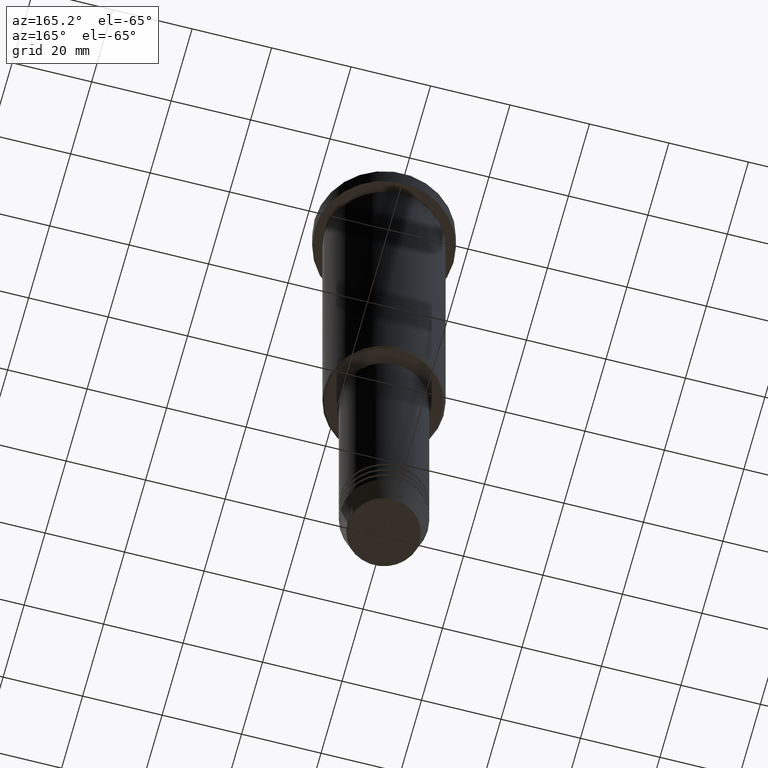
[diagram: clean part render]
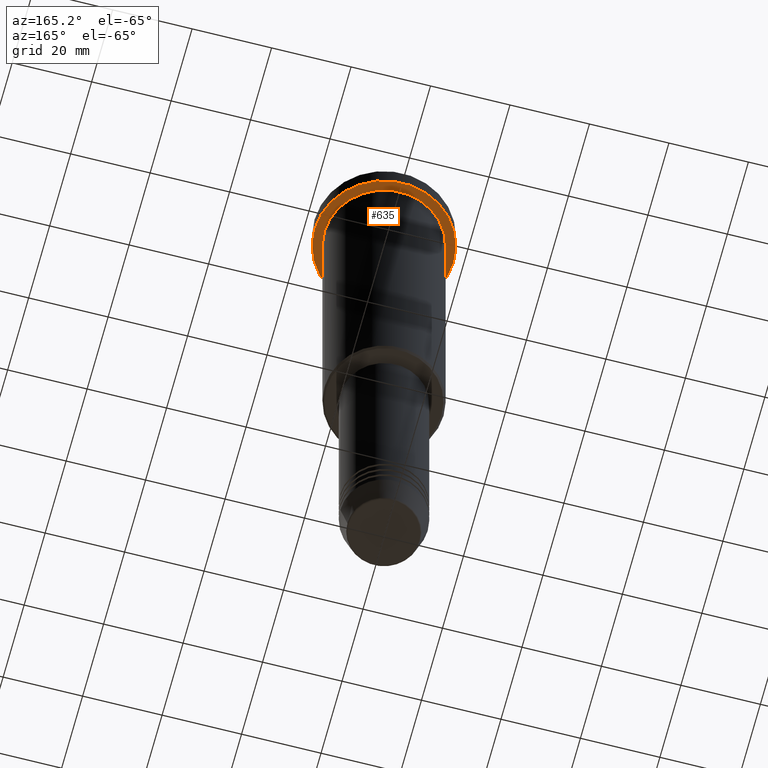
[diagram: same view with one face highlighted and labeled with its STEP entity id]
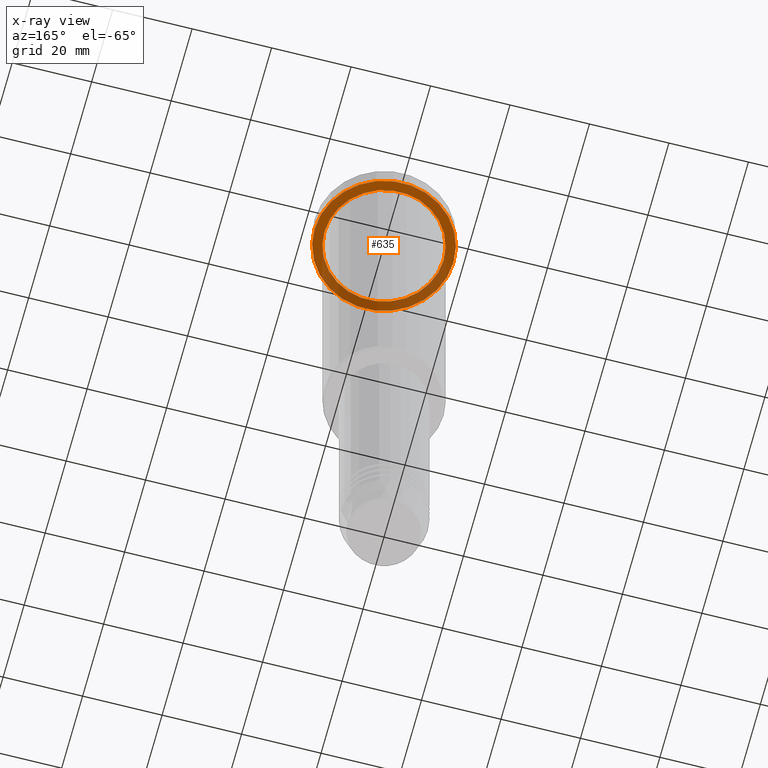
[diagram: x-ray of the same camera — body ghosted, the highlighted face saturated]
A machine part, auxiliary view. The second image highlights one B-rep face of the part: STEP entity #635.
The next image is the same camera in x-ray: the body ghosted, the highlighted face saturated — about 37% of this face is hidden behind the body in this view.
In plain terms, the highlighted planar face has unit normal (0, 0, -1).
Its self-contained STEP definition (entity closure, byte-faithful):
#2 = DIRECTION ( 'NONE',  ( 0.000000000000000000, 0.000000000000000000, -1.000000000000000000 ) ) ;
#25 = AXIS2_PLACEMENT_3D ( 'NONE', #492, #782, #768 ) ;
#121 = CIRCLE ( 'NONE', #501, 15.00000000000000000 ) ;
#140 = CIRCLE ( 'NONE', #25, 17.50000000000000000 ) ;
#142 = CARTESIAN_POINT ( 'NONE',  ( 0.000000000000000000, 0.000000000000000000, -5.999999999999995559 ) ) ;
#167 = EDGE_CURVE ( 'NONE', #1028, #696, #979, .T. ) ;
#181 = AXIS2_PLACEMENT_3D ( 'NONE', #1020, #466, #554 ) ;
#209 = ORIENTED_EDGE ( 'NONE', *, *, #167, .T. ) ;
#260 = CARTESIAN_POINT ( 'NONE',  ( 0.000000000000000000, 17.50000000000000000, -5.999999999999995559 ) ) ;
#268 = CARTESIAN_POINT ( 'NONE',  ( -17.50000000000000000, 2.143131898507868248E-15, -5.999999999999995559 ) ) ;
#308 = VERTEX_POINT ( 'NONE', #779 ) ;
#399 = CIRCLE ( 'NONE', #181, 17.50000000000000000 ) ;
#466 = DIRECTION ( 'NONE',  ( -0.000000000000000000, -0.000000000000000000, 1.000000000000000000 ) ) ;
#469 = DIRECTION ( 'NONE',  ( -0.000000000000000000, -0.000000000000000000, 1.000000000000000000 ) ) ;
#492 = CARTESIAN_POINT ( 'NONE',  ( 0.000000000000000000, 0.000000000000000000, -5.999999999999995559 ) ) ;
#501 = AXIS2_PLACEMENT_3D ( 'NONE', #560, #469, #907 ) ;
#525 = DIRECTION ( 'NONE',  ( -0.000000000000000000, -0.000000000000000000, 1.000000000000000000 ) ) ;
#554 = DIRECTION ( 'NONE',  ( 1.000000000000000000, 0.000000000000000000, 0.000000000000000000 ) ) ;
#560 = CARTESIAN_POINT ( 'NONE',  ( 0.000000000000000000, 0.000000000000000000, -5.999999999999995559 ) ) ;
#583 = EDGE_LOOP ( 'NONE', ( #861, #209 ) ) ;
#611 = EDGE_CURVE ( 'NONE', #696, #1028, #121, .T. ) ;
#635 = ADVANCED_FACE ( 'NONE', ( #902, #1006 ), #1080, .T. ) ;
#643 = VERTEX_POINT ( 'NONE', #268 ) ;
#696 = VERTEX_POINT ( 'NONE', #1130 ) ;
#736 = DIRECTION ( 'NONE',  ( -1.000000000000000000, 0.000000000000000000, 0.000000000000000000 ) ) ;
#743 = DIRECTION ( 'NONE',  ( -1.000000000000000000, 0.000000000000000000, -0.000000000000000000 ) ) ;
#760 = EDGE_CURVE ( 'NONE', #308, #643, #140, .T. ) ;
#768 = DIRECTION ( 'NONE',  ( 1.000000000000000000, 0.000000000000000000, 0.000000000000000000 ) ) ;
#779 = CARTESIAN_POINT ( 'NONE',  ( 17.50000000000000000, 0.000000000000000000, -5.999999999999995559 ) ) ;
#782 = DIRECTION ( 'NONE',  ( -0.000000000000000000, -0.000000000000000000, 1.000000000000000000 ) ) ;
#809 = EDGE_LOOP ( 'NONE', ( #897, #900 ) ) ;
#832 = CARTESIAN_POINT ( 'NONE',  ( 15.00000000000000000, 1.836970198721029589E-15, -5.999999999999994671 ) ) ;
#861 = ORIENTED_EDGE ( 'NONE', *, *, #611, .T. ) ;
#866 = AXIS2_PLACEMENT_3D ( 'NONE', #142, #525, #736 ) ;
#897 = ORIENTED_EDGE ( 'NONE', *, *, #760, .F. ) ;
#900 = ORIENTED_EDGE ( 'NONE', *, *, #1037, .F. ) ;
#902 = FACE_BOUND ( 'NONE', #583, .T. ) ;
#907 = DIRECTION ( 'NONE',  ( -1.000000000000000000, 0.000000000000000000, 0.000000000000000000 ) ) ;
#979 = CIRCLE ( 'NONE', #866, 15.00000000000000000 ) ;
#982 = AXIS2_PLACEMENT_3D ( 'NONE', #260, #2, #743 ) ;
#1006 = FACE_OUTER_BOUND ( 'NONE', #809, .T. ) ;
#1020 = CARTESIAN_POINT ( 'NONE',  ( 0.000000000000000000, 0.000000000000000000, -5.999999999999995559 ) ) ;
#1028 = VERTEX_POINT ( 'NONE', #832 ) ;
#1037 = EDGE_CURVE ( 'NONE', #643, #308, #399, .T. ) ;
#1080 = PLANE ( 'NONE',  #982 ) ;
#1130 = CARTESIAN_POINT ( 'NONE',  ( -15.00000000000000000, 0.000000000000000000, -5.999999999999994671 ) ) ;